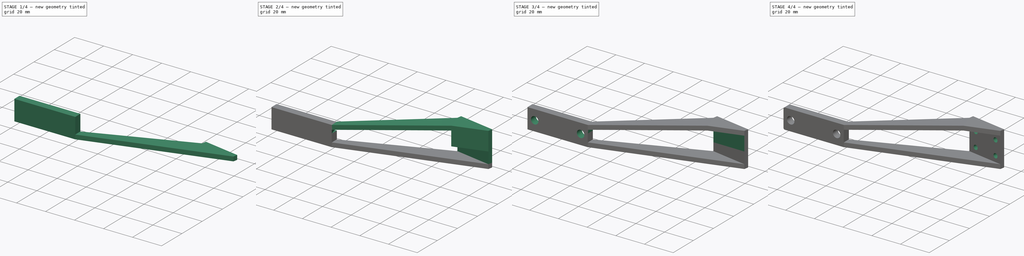
[diagram: build sequence overview — one tinted view per stage of 4, left to right]
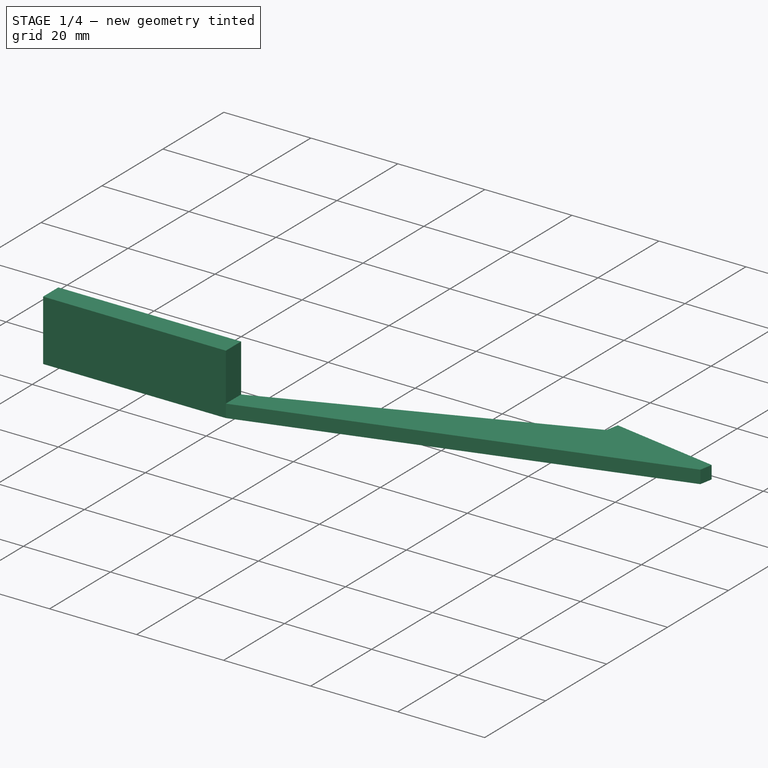
[diagram: stage 1 of 4 — iso view after this stage's code; geometry added in this stage tinted green]
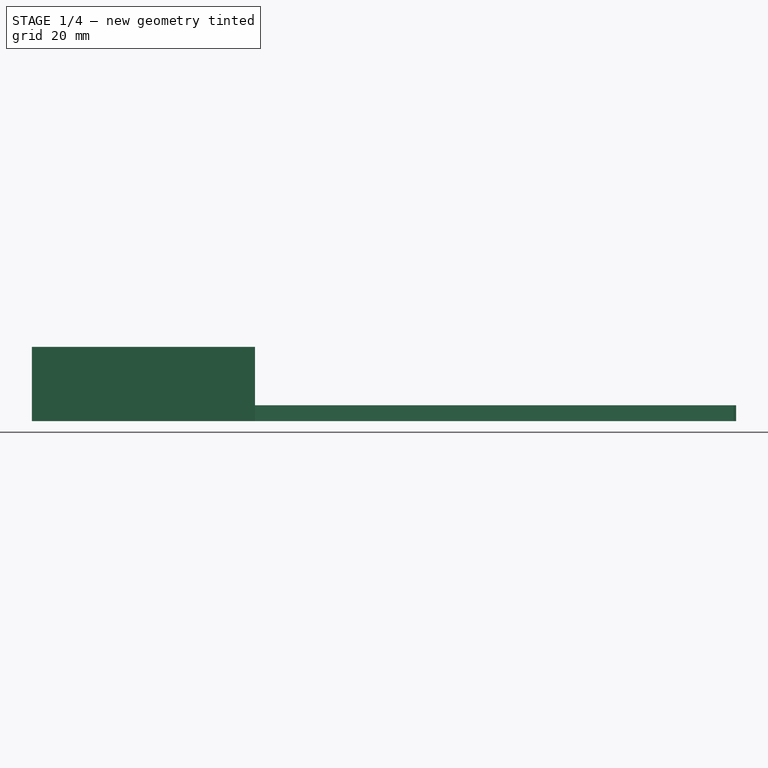
[diagram: stage 1 of 4 — front view after this stage's code; geometry added in this stage tinted green]
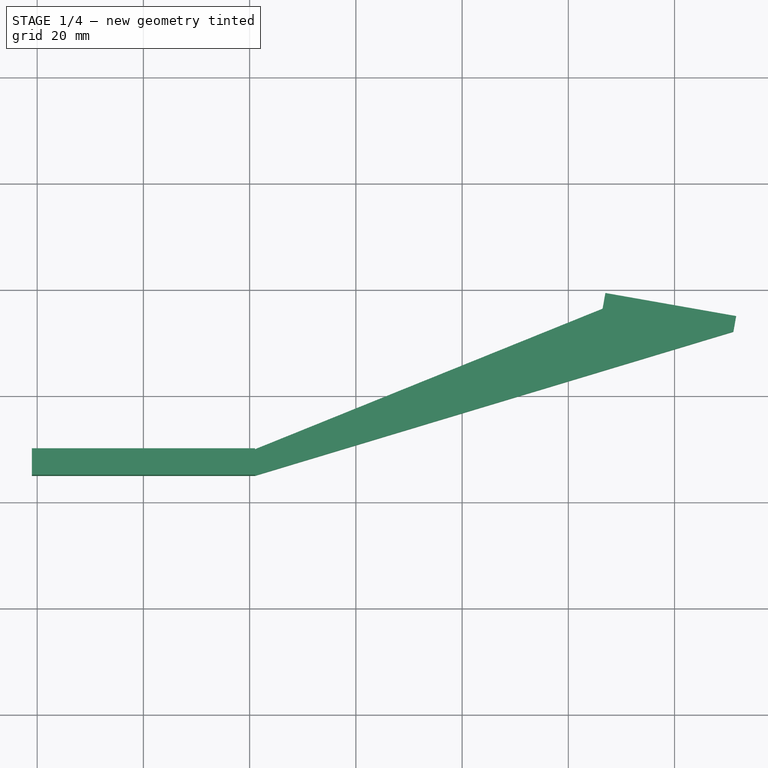
[diagram: stage 1 of 4 — top view after this stage's code; geometry added in this stage tinted green]
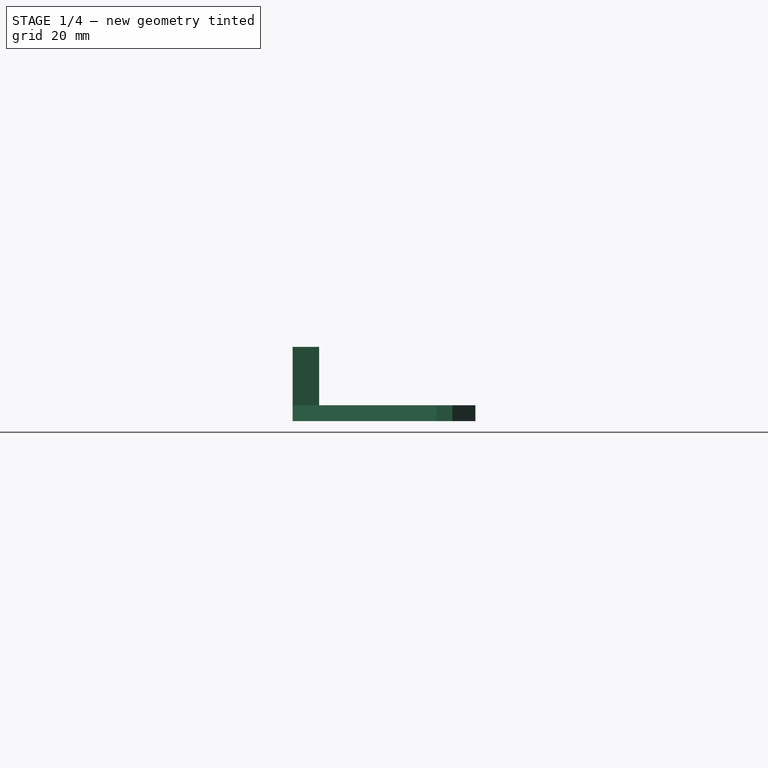
[diagram: stage 1 of 4 — right view after this stage's code; geometry added in this stage tinted green]
FCSTD DOCUMENT  (FreeCAD 0.19R24276 (Git))
Label: Lips_arm_right
License: All rights reserved
LicenseURL: http://en.wikipedia.org/wiki/All_rights_reserved
objects: Sketcher::SketchObject×9, PartDesign::Pad×5, PartDesign::Pocket×4, PartDesign::Fillet×1, PartDesign::Body×1
note: 30 computed .brp shape members not serialized (recipe doc carries the construction recipe); baked Part::Feature solids carry a one-line shape summary decoded from their .brp

FEATURE [Sketcher::SketchObject] Sketch
  FullyConstrained = false
  MapMode = 5
  Support = -> [XY_Plane]
  sketch-geometry (46):
    g0: Circle CenterX=0 CenterY=-54 CenterZ=0 NormalX=0 NormalY=0 NormalZ=1 AngleXU=0 Radius=4
    g1: LineSegment StartX=-57.9645 StartY=-38.8963 StartZ=0 EndX=-1.26483 EndY=-57.7948 EndZ=0
    g2: LineSegment StartX=-45 StartY=0 StartZ=0 EndX=-57.9645 EndY=-38.8963 EndZ=0
    g3: LineSegment StartX=0 StartY=-54 StartZ=0 EndX=-1.26483 EndY=-57.7948 EndZ=0
    g4: LineSegment StartX=1.39757 StartY=-57.7479 StartZ=0 EndX=58.5823 EndY=-36.4241 EndZ=0
    g5: LineSegment StartX=45 StartY=0 StartZ=0 EndX=58.5823 EndY=-36.4241 EndZ=0
    g6: LineSegment StartX=0 StartY=-54 StartZ=0 EndX=1.39757 EndY=-57.7479 EndZ=0
    g7: LineSegment StartX=-45 StartY=0 StartZ=0 EndX=45 EndY=0 EndZ=0
    g8: LineSegment StartX=0 StartY=0 StartZ=0 EndX=0 EndY=-54 EndZ=0
    g9: Circle CenterX=0 CenterY=0 CenterZ=0 NormalX=0 NormalY=0 NormalZ=1 AngleXU=0 Radius=90
    g10: LineSegment StartX=-45 StartY=0 StartZ=0 EndX=-31.8819 EndY=-39.2255 EndZ=0
    g11: Circle CenterX=0 CenterY=54 CenterZ=0 NormalX=0 NormalY=0 NormalZ=1 AngleXU=0 Radius=4
    g12: LineSegment StartX=0 StartY=0 StartZ=0 EndX=0 EndY=54 EndZ=0
    g13: Circle CenterX=0 CenterY=220 CenterZ=0 NormalX=0 NormalY=0 NormalZ=1 AngleXU=0 Radius=20
    g14: LineSegment StartX=45 StartY=0 StartZ=0 EndX=56.689 EndY=42.3716 EndZ=0
    g15: LineSegment StartX=-29.7255 StartY=-48.3086 StartZ=0 EndX=-26.8797 EndY=-39.7704 EndZ=0
    g16: LineSegment StartX=-29.7255 StartY=-48.3086 StartZ=0 EndX=-32.5714 EndY=-56.8468 EndZ=0
    g17: Circle CenterX=-45 CenterY=0 CenterZ=0 NormalX=0 NormalY=0 NormalZ=1 AngleXU=0 Radius=41
    g18: Circle CenterX=45 CenterY=0 CenterZ=0 NormalX=0 NormalY=0 NormalZ=1 AngleXU=0 Radius=41
    g19: LineSegment StartX=0 StartY=0 StartZ=0 EndX=0 EndY=-135 EndZ=0
    g20: LineSegment StartX=0 StartY=-135 StartZ=0 EndX=-86.4517 EndY=-103.534 EndZ=0
    g21: LineSegment StartX=0 StartY=-135 StartZ=0 EndX=86.4517 EndY=-103.534 EndZ=0
    g22: LineSegment StartX=-86.4517 StartY=-103.534 StartZ=0 EndX=-111.072 EndY=-107.875 EndZ=0
    g23: LineSegment StartX=-111.072 StartY=-107.875 StartZ=0 EndX=-111.593 EndY=-104.921 EndZ=0
    g24: LineSegment StartX=-111.593 StartY=-104.921 StartZ=0 EndX=-86.9727 EndY=-100.58 EndZ=0
    g25: LineSegment StartX=-86.9727 StartY=-100.58 StartZ=0 EndX=-86.4517 EndY=-103.534 EndZ=0
    g26: LineSegment StartX=-21 StartY=-135 StartZ=0 EndX=21 EndY=-135 EndZ=0
    g27: LineSegment StartX=21 StartY=-135 StartZ=0 EndX=21 EndY=-140 EndZ=0
    g28: LineSegment StartX=21 StartY=-140 StartZ=0 EndX=-21 EndY=-140 EndZ=0
    g29: LineSegment StartX=-21 StartY=-140 StartZ=0 EndX=-21 EndY=-135 EndZ=0
    g30: LineSegment StartX=0 StartY=-135 StartZ=0 EndX=-72.9805 EndY=-135 EndZ=0
    g31: LineSegment StartX=-21 StartY=-135 StartZ=0 EndX=-86.4517 EndY=-103.534 EndZ=0
    g32: LineSegment StartX=-21 StartY=-140 StartZ=0 EndX=-111.072 EndY=-107.875 EndZ=0
    g33: LineSegment StartX=-110.377 StartY=-111.815 StartZ=0 EndX=-61.9528 EndY=-103.276 EndZ=0
    g34: LineSegment StartX=-111.072 StartY=-107.875 StartZ=0 EndX=-110.377 EndY=-111.815 EndZ=0
    g35: LineSegment StartX=-86.9727 StartY=-100.58 StartZ=0 EndX=118.679 EndY=-100.58 EndZ=0
    g36: LineSegment StartX=86.4517 StartY=-103.534 StartZ=0 EndX=111.072 EndY=-107.875 EndZ=0
    g37: LineSegment StartX=111.072 StartY=-107.875 StartZ=0 EndX=111.593 EndY=-104.921 EndZ=0
    g38: LineSegment StartX=111.593 StartY=-104.921 StartZ=0 EndX=86.9727 EndY=-100.58 EndZ=0
    g39: LineSegment StartX=86.9727 StartY=-100.58 StartZ=0 EndX=86.4517 EndY=-103.534 EndZ=0
    g40: LineSegment StartX=21 StartY=-135 StartZ=0 EndX=-21 EndY=-135 EndZ=0
    g41: LineSegment StartX=-21 StartY=-135 StartZ=0 EndX=-21 EndY=-130 EndZ=0
    g42: LineSegment StartX=-21 StartY=-130 StartZ=0 EndX=21 EndY=-130 EndZ=0
    g43: LineSegment StartX=21 StartY=-130 StartZ=0 EndX=21 EndY=-135 EndZ=0
    g44: LineSegment StartX=21 StartY=-135 StartZ=0 EndX=111.072 EndY=-107.875 EndZ=0
    g45: LineSegment StartX=21 StartY=-130 StartZ=0 EndX=86.4517 EndY=-103.534 EndZ=0
  constraints (115):
    c: Diameter(g0) = 8
    c: PointOnObject(g1,g0)
    c: Perpendicular(g1,g2)
    c: Coincident(g3,g0)
    c: Coincident(g3,g1)
    c: Perpendicular(g3,g1)
    c: PointOnObject(g4,g0)
    c: Coincident(g5,g4)
    c: Perpendicular(g5,g4)
    c: Coincident(g6,g0)
    c: Coincident(g6,g4)
    c: Perpendicular(g4,g6)
    c: Distance(g7) = 90
    c: Coincident(g8,g-1)
    c: Coincident(g8,g0)
    c: Perpendicular(g7,g8)
    c: Distance(g8) = 54
    c: Coincident(g9,g-1)
    c: Diameter(g9) = 180
    c: Equal(g0,g11)
    c: Coincident(g12,g-1)
    c: Coincident(g12,g11)
    c: Equal(g12,g8)
    c: Parallel(g12,g8)
    c: PointOnObject(g13,g-2)
    c: Radius(g13) = 20
    c: DistanceY(g-1,g13) = 220
    c: PointOnObject(g15,g1)
    c: Coincident(g16,g15)
    c: Symmetric(g16,g15,g15)
    c: Distance(g16,g15) = 18
    c: Perpendicular(g15,g1)
    c: Distance(g15,g1) = 30
    c: Coincident(g17,g2)
    c: Coincident(g18,g5)
    c: Equal(g17,g18)
    c: Coincident(g19,g-1)
    c: Vertical(g19)
    c: DistanceY(g19,g19) = 135
    c: Coincident(g20,g21)
    c: Coincident(g20,g19)
    c: Distance(g20) = 92
    c: Equal(g20,g21)
    c: Coincident(g22,g20)
    c: Coincident(g24,g23)
    c: Coincident(g25,g24)
    c: Coincident(g25,g20)
    c: Parallel(g23,g25)
    c: Perpendicular(g23,g22)
    c: Distance(g22) = 25
    c: Coincident(g2,g7)
    c: Coincident(g10,g2)
    c: Coincident(g7,g5)
    c: Coincident(g7,g14)
    c: Symmetric(g2,g5,g-1)
    c: Horizontal(g7)
    c: PointOnObject(g2,g17)
    c: Coincident(g1,g2)
    c: Diameter(g17) = 82
    c: Parallel(g22,g24)
    c: Angle(g22,g20) = 2.61799
    c: Coincident(g26,g27)
    c: Coincident(g27,g28)
    c: Coincident(g28,g29)
    c: Coincident(g29,g26)
    c: Horizontal(g26)
    c: Horizontal(g28)
    c: Vertical(g27)
    c: Vertical(g29)
    c: Coincident(g30,g20)
    c: Horizontal(g30)
    c: Angle(g20,g30) = 0.349066
    c: DistanceX(g28,g28) = 42
    c: Symmetric(g26,g26,g20)
    c: DistanceY(g27,g27) = 5
    c: Coincident(g31,g26)
    c: Coincident(g31,g20)
    c: Coincident(g32,g28)
    c: Coincident(g32,g22)
    c: Coincident(g23,g22)
    c: Distance(g23) = 3
    c: Parallel(g22,g33)
    c: Coincident(g34,g23)
    c: Perpendicular(g34,g33)
    c: Coincident(g33,g34)
    c: Distance(g34) = 4
    c: Coincident(g35,g24)
    c: Horizontal(g35)
    c: Coincident(g38,g37)
    c: Coincident(g39,g38)
    c: Parallel(g37,g39)
    c: Perpendicular(g37,g36)
    c: Distance(g36) = 25
    c: Parallel(g36,g38)
    c: Coincident(g37,g36)
    c: Distance(g37) = 3
    c: Coincident(g21,g39)
    c: Angle(g21,g30) = 2.79253
    c: Coincident(g40,g41)
    c: Coincident(g41,g42)
    c: Coincident(g42,g43)
    c: Coincident(g43,g40)
    c: Horizontal(g40)
    c: Horizontal(g42)
    c: Vertical(g41)
    c: Vertical(g43)
    c: Coincident(g40,g26)
    c: DistanceY(g43,g43) = 5
    c: Vertical(g41,g26)
    c: Coincident(g44,g26)
    c: Coincident(g44,g37)
    c: Coincident(g45,g42)
    c: Coincident(g45,g39)
    c: Coincident(g36,g39)
    c: Angle(g21,g36) = 2.61799
FEATURE [PartDesign::Pad] Pad
  Direction = (1,1,1)
  Length = 3
  Length2 = 100
  Profile = -> Sketch
  Type = 0
FEATURE [Sketcher::SketchObject] Sketch011
  FullyConstrained = true
  MapMode = 5
  Placement = pos=(0,-135,0) rot=(1,0,0;1.5708rad)
  Support = -> [Pad]
  sketch-geometry (4):
    g0: LineSegment StartX=-21 StartY=14 StartZ=0 EndX=21 EndY=14 EndZ=0
    g1: LineSegment StartX=21 StartY=14 StartZ=0 EndX=21 EndY=0 EndZ=0
    g2: LineSegment StartX=21 StartY=0 StartZ=0 EndX=-21 EndY=0 EndZ=0
    g3: LineSegment StartX=-21 StartY=0 StartZ=0 EndX=-21 EndY=14 EndZ=0
  constraints (11):
    c: Coincident(g0,g1)
    c: Coincident(g1,g2)
    c: Coincident(g2,g3)
    c: Coincident(g3,g0)
    c: Horizontal(g0)
    c: Horizontal(g2)
    c: Vertical(g1)
    c: Vertical(g3)
    c: DistanceX(g2,g2) = 42
    c: Symmetric(g2,g1,g-1)
    c: DistanceY(g3,g3) = 14
FEATURE [PartDesign::Pad] Pad005
  BaseFeature = -> Pad
  Direction = (1,1,1)
  Length = 5
  Length2 = 100
  Profile = -> Sketch011
  Reversed = true
  Type = 0
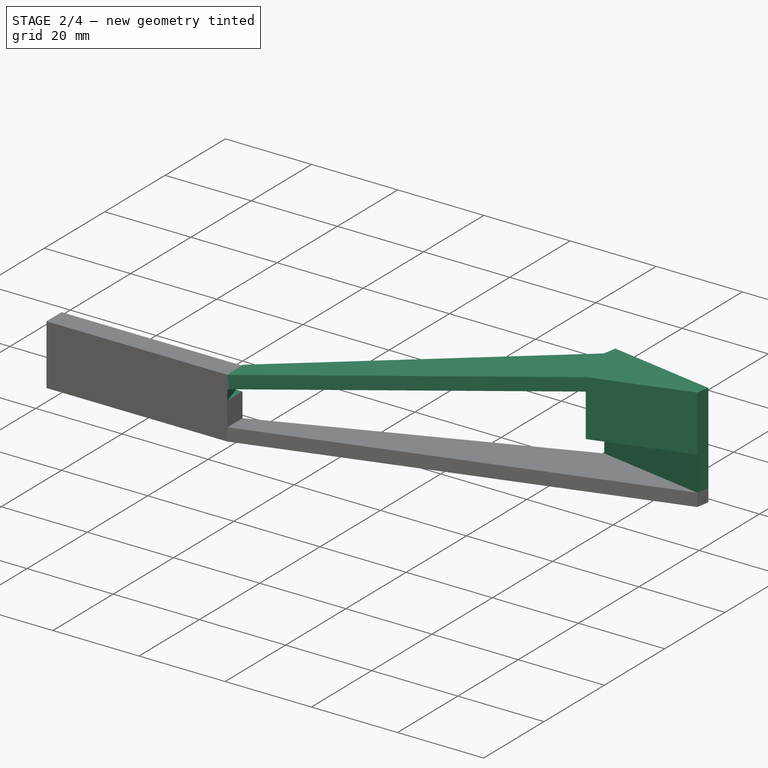
[diagram: stage 2 of 4 — iso view after this stage's code; geometry added in this stage tinted green]
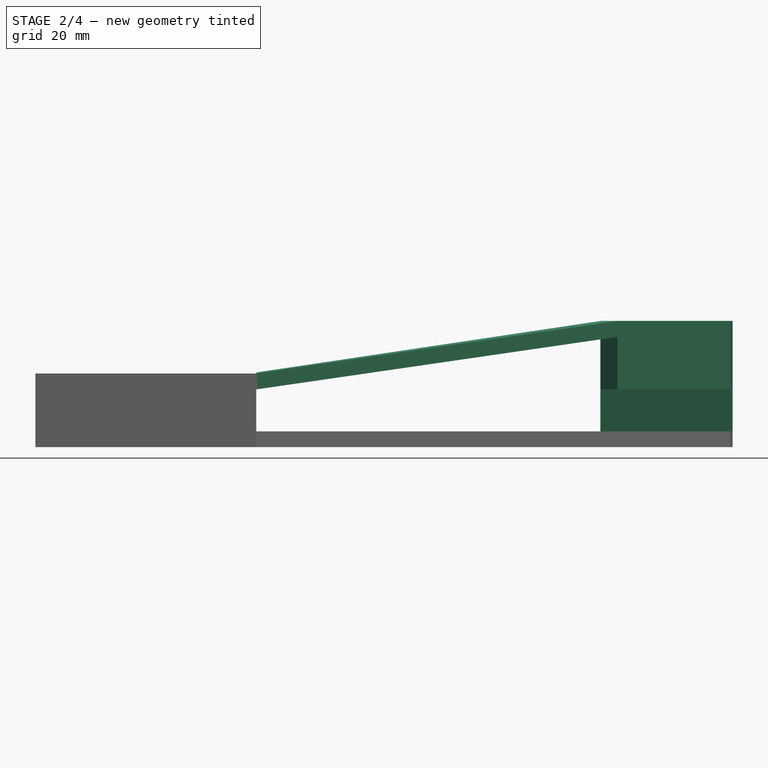
[diagram: stage 2 of 4 — front view after this stage's code; geometry added in this stage tinted green]
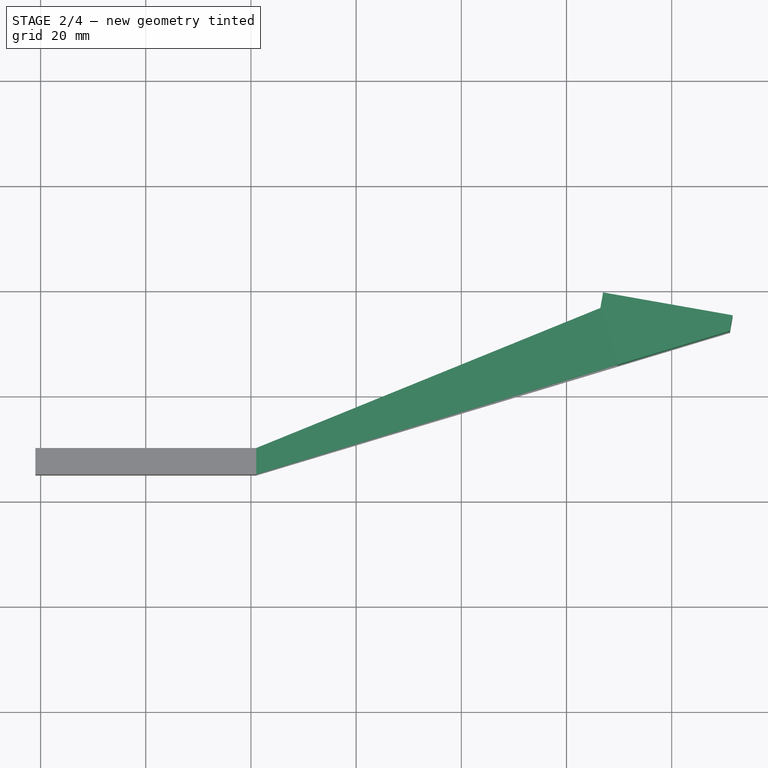
[diagram: stage 2 of 4 — top view after this stage's code; geometry added in this stage tinted green]
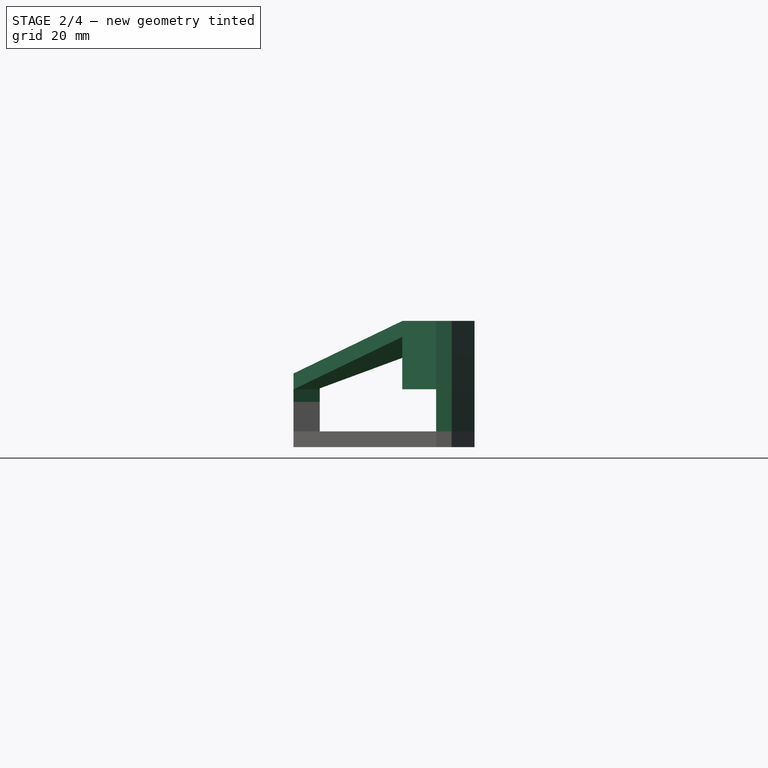
[diagram: stage 2 of 4 — right view after this stage's code; geometry added in this stage tinted green]
FEATURE [Sketcher::SketchObject] Sketch012
  FullyConstrained = true
  MapMode = 5
  Placement = pos=(-14.5776,-82.6737,0) rot=(0.061746,0.705758,0.705758;3.01826rad)
  Support = -> [Pad005]
  sketch-geometry (4):
    g0: LineSegment StartX=-128.1 StartY=0 StartZ=0 EndX=-103.1 EndY=0 EndZ=0
    g1: LineSegment StartX=-103.1 StartY=0 StartZ=0 EndX=-103.1 EndY=24 EndZ=0
    g2: LineSegment StartX=-103.1 StartY=24 StartZ=0 EndX=-128.1 EndY=24 EndZ=0
    g3: LineSegment StartX=-128.1 StartY=24 StartZ=0 EndX=-128.1 EndY=0 EndZ=0
  constraints (12):
    c: Coincident(g0,g1)
    c: Coincident(g1,g2)
    c: Coincident(g2,g3)
    c: Coincident(g3,g0)
    c: Horizontal(g0)
    c: Horizontal(g2)
    c: Vertical(g1)
    c: Vertical(g3)
    c: PointOnObject(g0,g-1)
    c: DistanceX(g0,g0) = 25
    c: DistanceY(g3,g3) = 24
    c: DistanceX(g0,g-1) = 128.1
FEATURE [PartDesign::Pad] Pad006
  BaseFeature = -> Pad005
  Direction = (1,1,1)
  Length = 3
  Length2 = 100
  Profile = -> Sketch012
  Reversed = true
  Type = 0
FEATURE [Sketcher::SketchObject] Sketch013
  FullyConstrained = false
  MapMode = 5
  Placement = pos=(0,0,24) rot=(0,0,1;0rad)
  Support = -> [Pad006]
  sketch-geometry (6):
    g0: LineSegment StartX=86.4503 StartY=-103.534 StartZ=0 EndX=20.9997 EndY=-130 EndZ=0
    g1: LineSegment StartX=20.9997 StartY=-130 StartZ=0 EndX=20.9997 EndY=-135 EndZ=0
    g2: LineSegment StartX=20.9997 StartY=-135 StartZ=0 EndX=111.071 EndY=-107.877 EndZ=0
    g3: LineSegment StartX=111.071 StartY=-107.877 StartZ=0 EndX=111.084 EndY=-107.803 EndZ=0
    g4: LineSegment StartX=111.084 StartY=-107.803 StartZ=0 EndX=86.4595 EndY=-103.487 EndZ=0
    g5: LineSegment StartX=86.4595 StartY=-103.487 StartZ=0 EndX=86.4503 EndY=-103.534 EndZ=0
  constraints (7):
    c: Coincident(g1,g0)
    c: Vertical(g1)
    c: Coincident(g2,g1)
    c: Coincident(g3,g2)
    c: Coincident(g4,g3)
    c: Coincident(g5,g4)
    c: Coincident(g5,g0)
FEATURE [PartDesign::Pad] Pad007
  BaseFeature = -> Pad006
  Direction = (1,1,1)
  Length = 13
  Length2 = 100
  Profile = -> Sketch013
  Reversed = true
  Type = 0
FEATURE [Sketcher::SketchObject] Sketch014
  FullyConstrained = false
  MapMode = 5
  Placement = pos=(39.0185,-129.574,0) rot=(0.978985,0.144202,0.144202;1.59203rad)
  Support = -> [Pad007]
  sketch-geometry (13):
    g0: LineSegment StartX=-18.8188 StartY=13.9982 StartZ=0 EndX=52.9149 EndY=23.982 EndZ=0
    g1: LineSegment StartX=52.9149 StartY=3.05584 StartZ=0 EndX=52.9149 EndY=23.982 EndZ=0
    g2: LineSegment StartX=-18.8188 StartY=10.9692 StartZ=0 EndX=52.9149 EndY=20.9531 EndZ=0
    g3: LineSegment StartX=-18.8188 StartY=13.9982 StartZ=0 EndX=-18.4052 EndY=11.0268 EndZ=0
    g4: LineSegment StartX=-18.8188 StartY=10.9692 StartZ=0 EndX=-18.8188 EndY=13.9982 EndZ=0
    g5: LineSegment StartX=-18.8188 StartY=13.9982 StartZ=0 EndX=-25.6371 EndY=26.0455 EndZ=0
    g6: LineSegment StartX=-25.6371 StartY=26.0455 StartZ=0 EndX=57.2298 EndY=29.1608 EndZ=0
    g7: LineSegment StartX=57.2298 StartY=29.1608 StartZ=0 EndX=52.9149 EndY=23.982 EndZ=0
    g8: LineSegment StartX=52.9149 StartY=23.982 StartZ=0 EndX=-18.8188 EndY=13.9982 EndZ=0
    g9: LineSegment StartX=-18.8188 StartY=10.9692 StartZ=0 EndX=-18.8188 EndY=8.59182 EndZ=0
    g10: LineSegment StartX=-18.8188 StartY=8.59182 StartZ=0 EndX=52.9149 EndY=8.59182 EndZ=0
    g11: LineSegment StartX=52.9149 StartY=20.9531 StartZ=0 EndX=-18.8188 EndY=10.9692 EndZ=0
    g12: LineSegment StartX=52.9149 StartY=20.9531 StartZ=0 EndX=52.9149 EndY=8.59182 EndZ=0
  constraints (26):
    c: Coincident(g1,g0)
    c: Vertical(g1)
    c: PointOnObject(g2,g1)
    c: Parallel(g0,g2)
    c: Coincident(g3,g0)
    c: PointOnObject(g3,g2)
    c: Perpendicular(g2,g3)
    c: Distance(g3) = 3
    c: Coincident(g4,g2)
    c: Coincident(g4,g0)
    c: Vertical(g4)
    c: Coincident(g5,g0)
    c: Coincident(g6,g5)
    c: Coincident(g7,g6)
    c: Coincident(g7,g0)
    c: Coincident(g8,g7)
    c: Coincident(g8,g5)
    c: Coincident(g9,g2)
    c: Coincident(g10,g9)
    c: Horizontal(g10)
    c: Coincident(g11,g2)
    c: Coincident(g12,g11)
    c: Coincident(g12,g10)
    c: Vertical(g12)
    c: Coincident(g9,g11)
    c: Vertical(g9)
FEATURE [PartDesign::Pocket] Pocket
  BaseFeature = -> Pad007
  Length = 5
  Length2 = 100
  Profile = -> Sketch014
  Type = 1
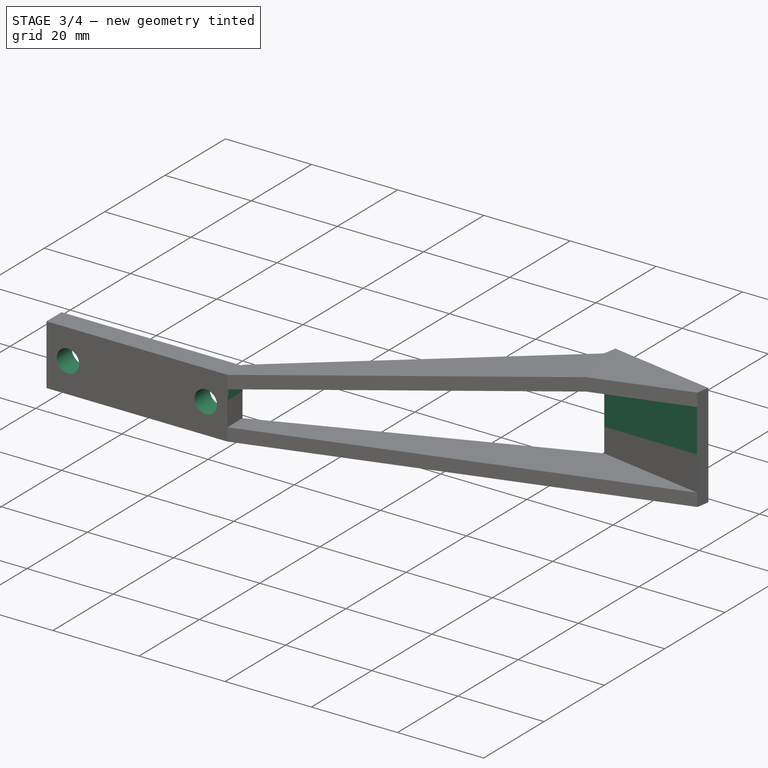
[diagram: stage 3 of 4 — iso view after this stage's code; geometry added in this stage tinted green]
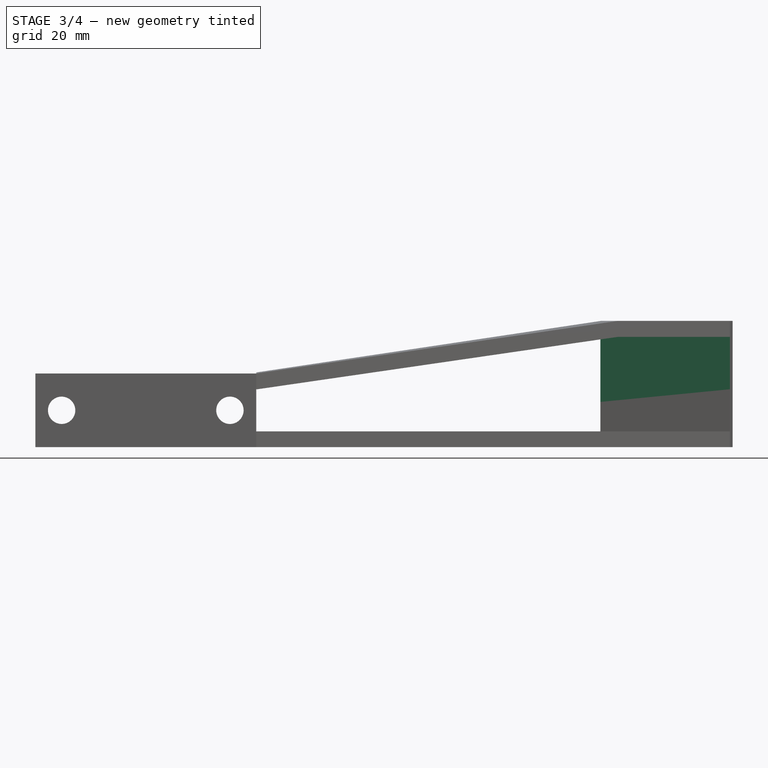
[diagram: stage 3 of 4 — front view after this stage's code; geometry added in this stage tinted green]
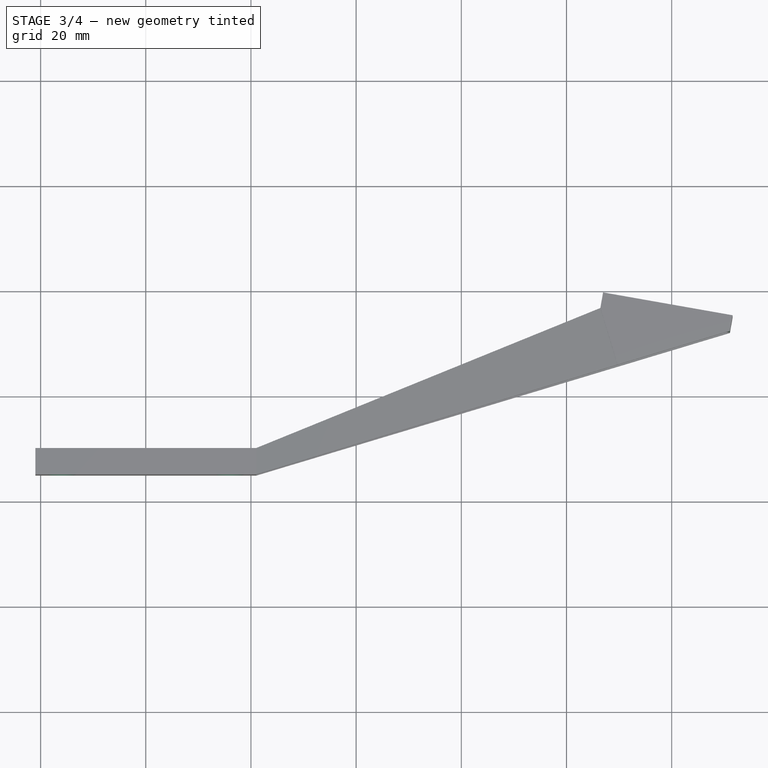
[diagram: stage 3 of 4 — top view after this stage's code; geometry added in this stage tinted green]
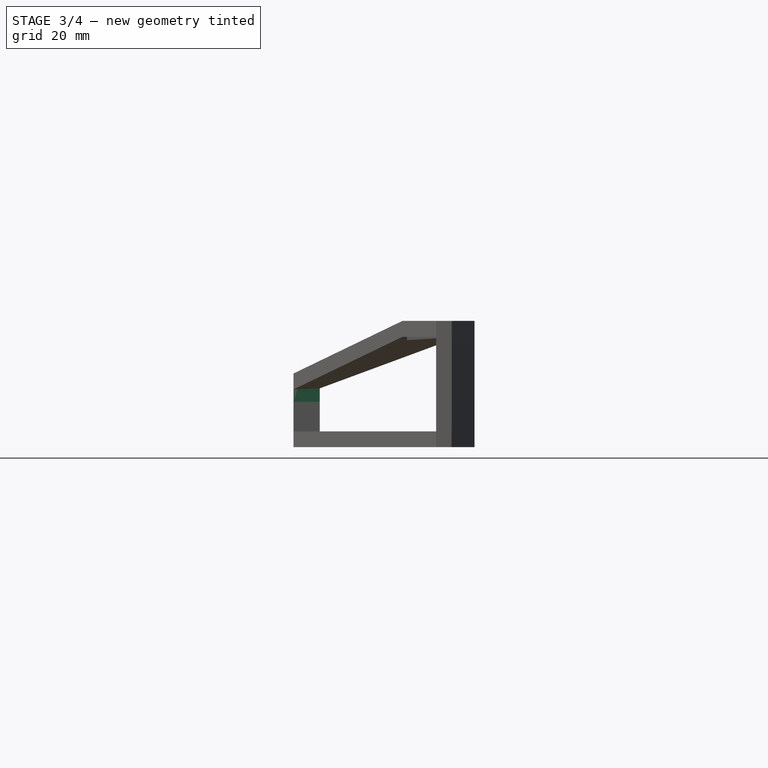
[diagram: stage 3 of 4 — right view after this stage's code; geometry added in this stage tinted green]
FEATURE [Sketcher::SketchObject] Sketch015
  FullyConstrained = false
  MapMode = 5
  Placement = pos=(126.154,-22.2443,0) rot=(0.6444,0.540716,0.540716;1.99673rad)
  Support = -> [Pocket]
  sketch-geometry (4):
    g0: LineSegment StartX=-86.9488 StartY=4.25375 StartZ=0 EndX=-97.02 EndY=4.25375 EndZ=0
    g1: LineSegment StartX=-97.02 StartY=4.25375 StartZ=0 EndX=-97.02 EndY=20.9648 EndZ=0
    g2: LineSegment StartX=-97.02 StartY=20.9648 StartZ=0 EndX=-86.9488 EndY=20.9648 EndZ=0
    g3: LineSegment StartX=-86.9488 StartY=20.9648 StartZ=0 EndX=-86.9488 EndY=4.25375 EndZ=0
  constraints (8):
    c: Coincident(g0,g1)
    c: Coincident(g1,g2)
    c: Coincident(g2,g3)
    c: Coincident(g3,g0)
    c: Horizontal(g0)
    c: Horizontal(g2)
    c: Vertical(g1)
    c: Vertical(g3)
FEATURE [PartDesign::Pocket] Pocket001
  BaseFeature = -> Pocket
  Length = 25
  Length2 = 100
  Profile = -> Sketch015
  Type = 0
FEATURE [Sketcher::SketchObject] Sketch016
  FullyConstrained = true
  MapMode = 5
  Placement = pos=(0,3.1e-15,14) rot=(0,0,1;0rad)
  Support = -> [Pocket001]
  sketch-geometry (4):
    g0: LineSegment StartX=-21 StartY=-130 StartZ=0 EndX=21 EndY=-130 EndZ=0
    g1: LineSegment StartX=21 StartY=-130 StartZ=0 EndX=21 EndY=-135 EndZ=0
    g2: LineSegment StartX=21 StartY=-135 StartZ=0 EndX=-21 EndY=-135 EndZ=0
    g3: LineSegment StartX=-21 StartY=-135 StartZ=0 EndX=-21 EndY=-130 EndZ=0
  constraints (12):
    c: Coincident(g0,g1)
    c: Coincident(g1,g2)
    c: Coincident(g2,g3)
    c: Coincident(g3,g0)
    c: Horizontal(g0)
    c: Horizontal(g2)
    c: Vertical(g1)
    c: Vertical(g3)
    c: DistanceY(g0,g-1) = 130
    c: DistanceY(g3,g3) = 5
    c: DistanceX(g-1,g0) = 21
    c: DistanceX(g0,g0) = 42
FEATURE [PartDesign::Pad] Pad008
  BaseFeature = -> Pocket001
  Direction = (1,1,1)
  Length = 14
  Length2 = 100
  Profile = -> Sketch016
  Reversed = true
  Type = 0
FEATURE [Sketcher::SketchObject] Sketch017
  FullyConstrained = true
  MapMode = 5
  Placement = pos=(0,-135,0) rot=(1,0,0;1.5708rad)
  Support = -> [Pad008]
  sketch-geometry (3):
    g0: Circle CenterX=-16 CenterY=7 CenterZ=0 NormalX=0 NormalY=0 NormalZ=1 AngleXU=0 Radius=2.6
    g1: Circle CenterX=16 CenterY=7 CenterZ=0 NormalX=0 NormalY=0 NormalZ=1 AngleXU=0 Radius=2.6
    g2: LineSegment StartX=0 StartY=0 StartZ=0 EndX=0 EndY=7 EndZ=0
  constraints (8):
    c: Horizontal(g0,g1)
    c: Diameter(g0) = 5.2
    c: Equal(g0,g1)
    c: Coincident(g2,g-1)
    c: PointOnObject(g2,g-2)
    c: Symmetric(g0,g1,g2)
    c: DistanceX(g0,g1) = 32
    c: DistanceY(g-1,g0) = 7
FEATURE [PartDesign::Pocket] Pocket002
  BaseFeature = -> Pad008
  Length = 5
  Length2 = 100
  Profile = -> Sketch017
  Type = 1
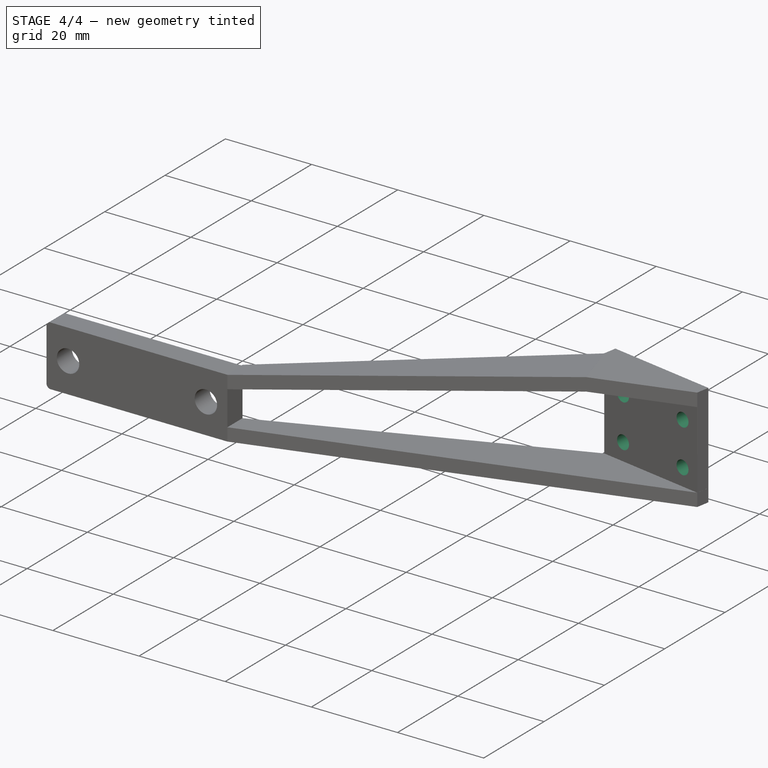
[diagram: stage 4 of 4 — iso view after this stage's code; geometry added in this stage tinted green]
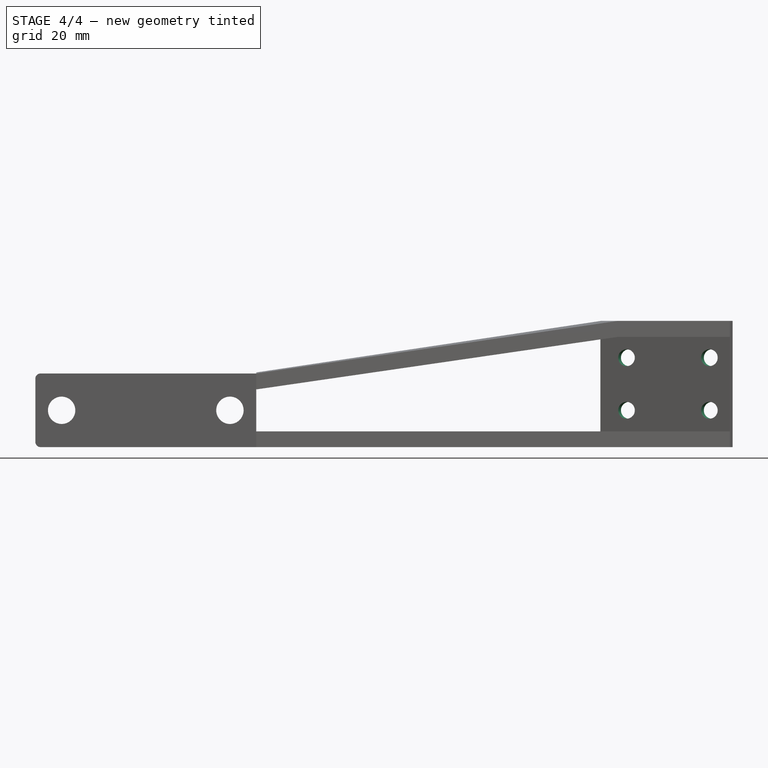
[diagram: stage 4 of 4 — front view after this stage's code; geometry added in this stage tinted green]
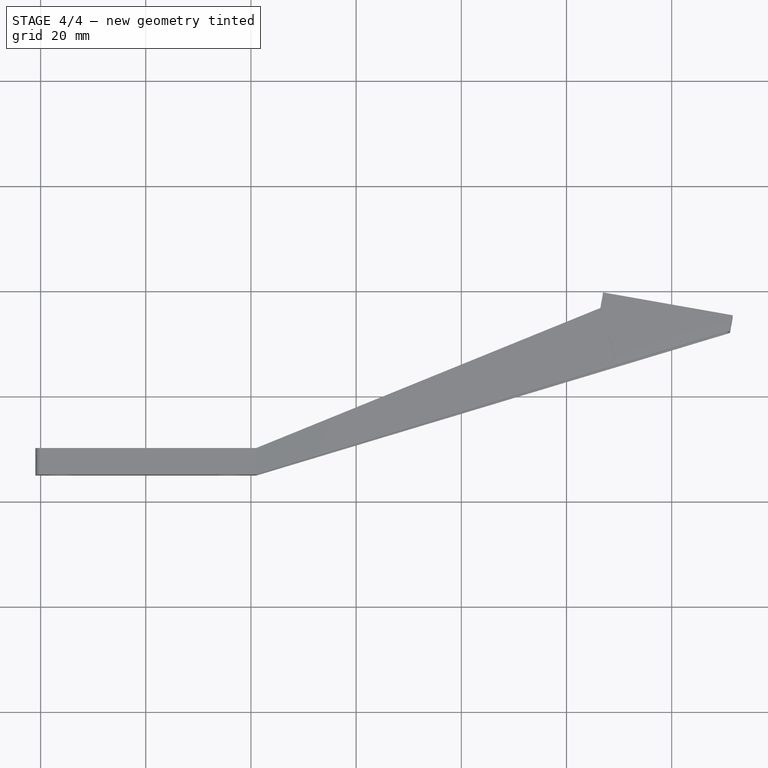
[diagram: stage 4 of 4 — top view after this stage's code; geometry added in this stage tinted green]
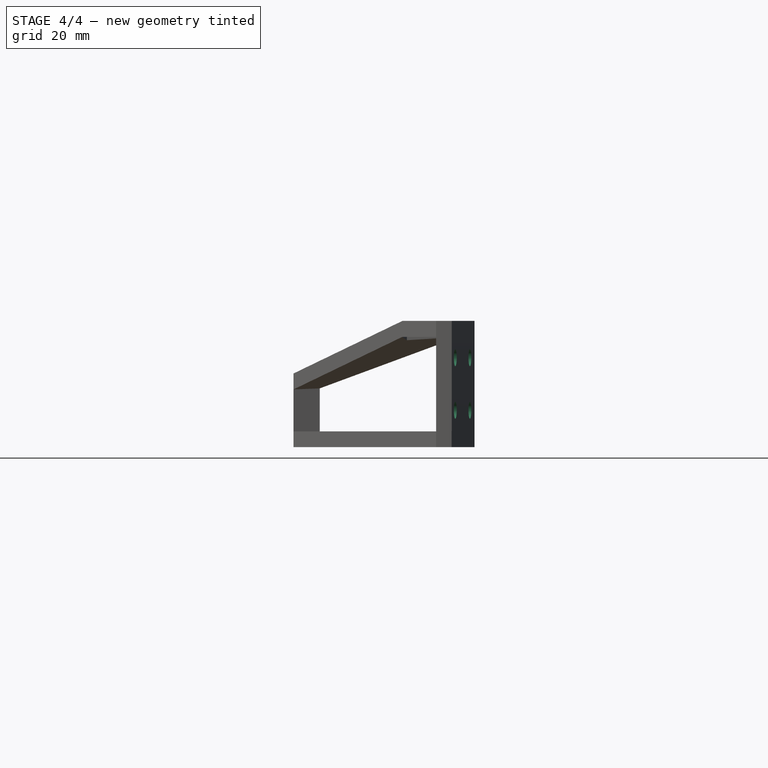
[diagram: stage 4 of 4 — right view after this stage's code; geometry added in this stage tinted green]
FEATURE [Sketcher::SketchObject] Sketch018
  FullyConstrained = false
  MapMode = 5
  Placement = pos=(-14.5776,-82.6737,0) rot=(0.061746,0.705758,0.705758;3.01826rad)
  Support = -> [Pocket002]
  sketch-geometry (7):
    g0: Circle CenterX=-124.149 CenterY=7 CenterZ=0 NormalX=0 NormalY=0 NormalZ=1 AngleXU=0 Radius=1.6
    g1: Circle CenterX=-108.149 CenterY=7 CenterZ=0 NormalX=0 NormalY=0 NormalZ=1 AngleXU=0 Radius=1.6
    g2: Circle CenterX=-124.149 CenterY=17 CenterZ=0 NormalX=0 NormalY=0 NormalZ=1 AngleXU=0 Radius=1.6
    g3: Circle CenterX=-108.149 CenterY=17 CenterZ=0 NormalX=0 NormalY=0 NormalZ=1 AngleXU=0 Radius=1.6
    g4: LineSegment StartX=0 StartY=0 StartZ=0 EndX=-128.62 EndY=0 EndZ=0
    g5: LineSegment StartX=-128.62 StartY=0 StartZ=0 EndX=-103.679 EndY=0 EndZ=0
    g6: LineSegment StartX=-116.149 StartY=0 StartZ=0 EndX=-116.149 EndY=7 EndZ=0
  constraints (18):
    c: Horizontal(g0,g1)
    c: Horizontal(g2,g3)
    c: Vertical(g2,g0)
    c: Vertical(g3,g1)
    c: Diameter(g0) = 3.2
    c: Equal(g0,g2)
    c: Equal(g0,g3)
    c: Equal(g0,g1)
    c: DistanceY(g0,g2) = 10
    c: DistanceY(g-1,g0) = 7
    c: DistanceX(g0,g1) = 16
    c: Coincident(g4,g-1)
    c: PointOnObject(g4,g-1)
    c: Coincident(g5,g4)
    c: PointOnObject(g5,g4)
    c: Vertical(g6)
    c: Symmetric(g4,g5,g6)
    c: Symmetric(g0,g1,g6)
FEATURE [PartDesign::Pocket] Pocket003
  BaseFeature = -> Pocket002
  Length = 5
  Length2 = 100
  Profile = -> Sketch018
  Type = 1
FEATURE [PartDesign::Fillet] Fillet
  Base = -> Pocket003 [Edge6,Edge28]
  BaseFeature = -> Pocket003
  Radius = 1
  SupportTransform = false
FEATURE [PartDesign::Body] Body
  Group = -> [Sketch,Pad,Pad005,Sketch012,Sketch011,Pad006,Sketch013,Pad007,Sketch014,Pocket,Sketch015,Pocket001,Sketch016,Pad008,Sketch017,Pocket002,Sketch018,Pocket003,Fillet]
  Origin = -> Origin
  Tip = -> Fillet
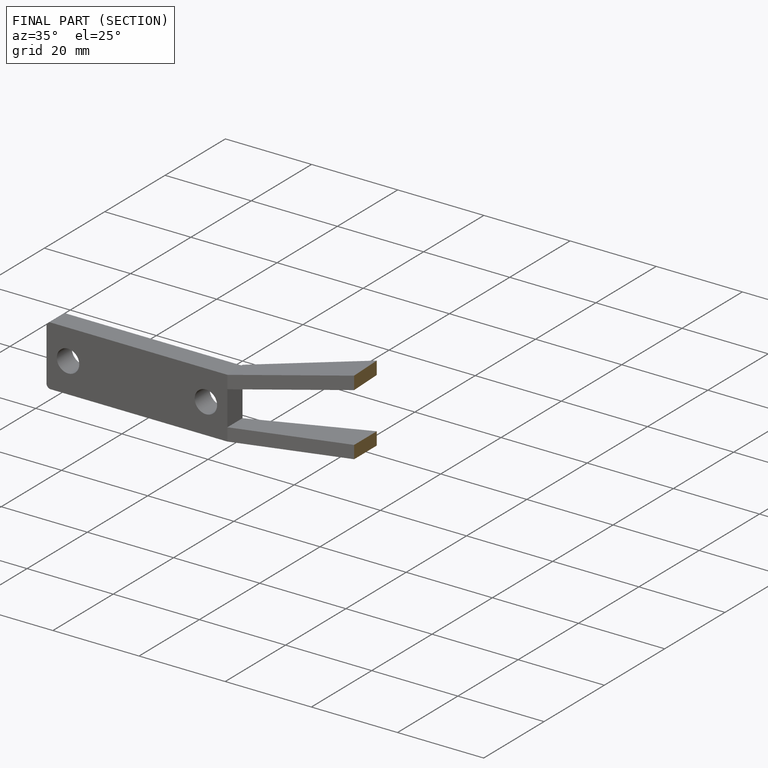
[diagram: finished part — half-section view (interior)]
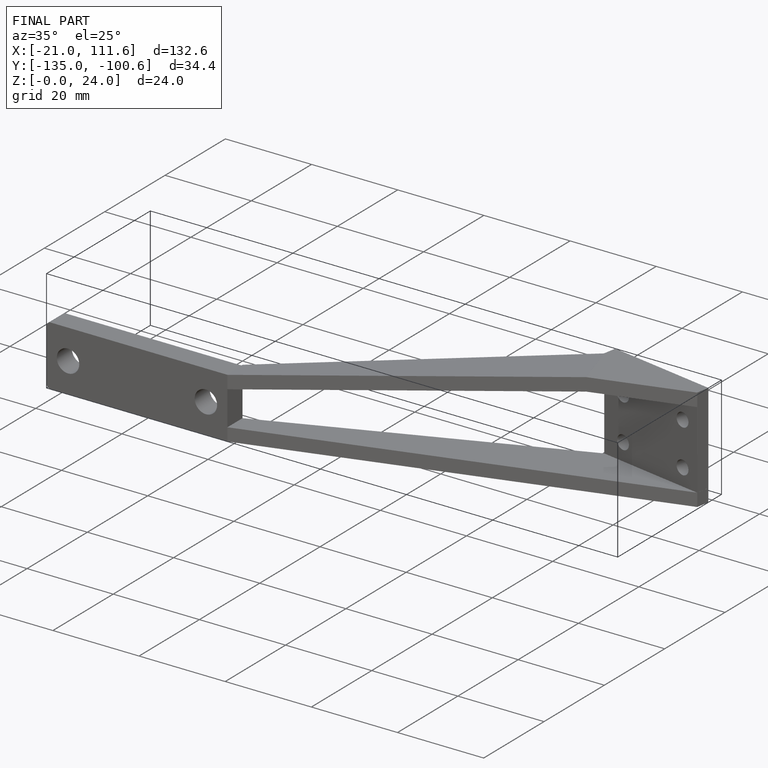
[diagram: finished part — iso view with bounding-box wireframe]
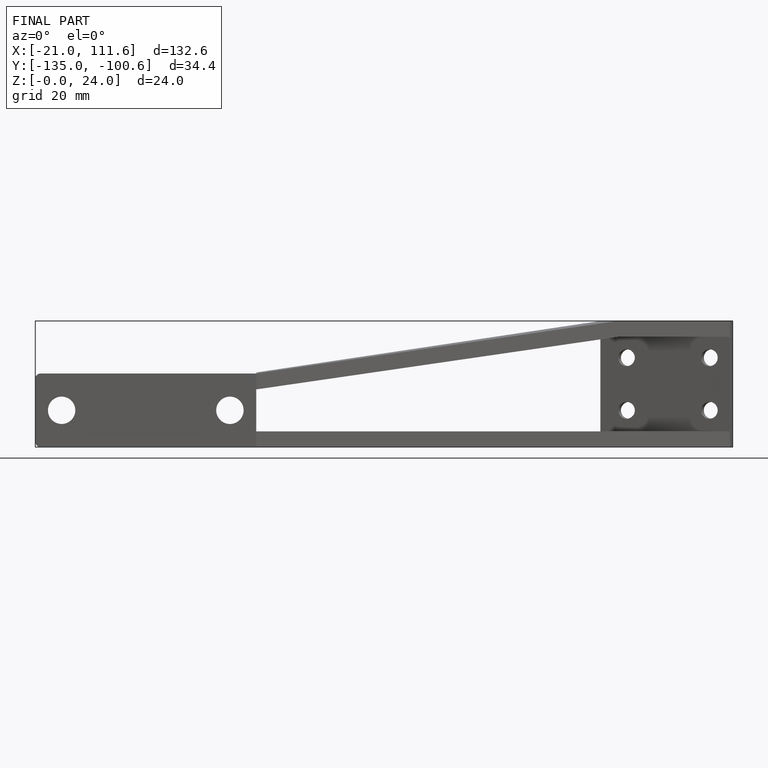
[diagram: finished part — front view with bounding-box wireframe]
